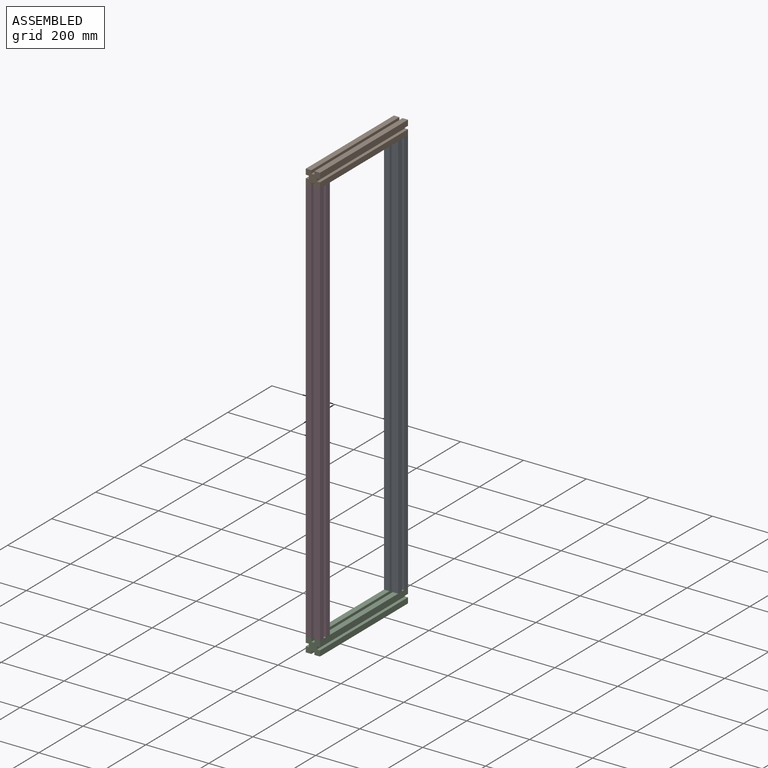
[diagram: assembled view]
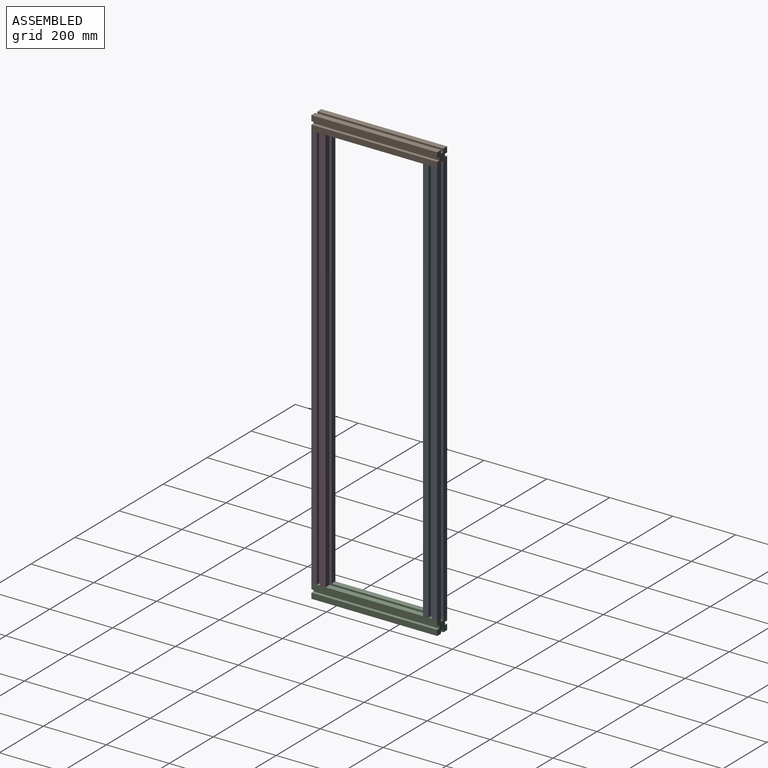
[diagram: assembled view, second angle]
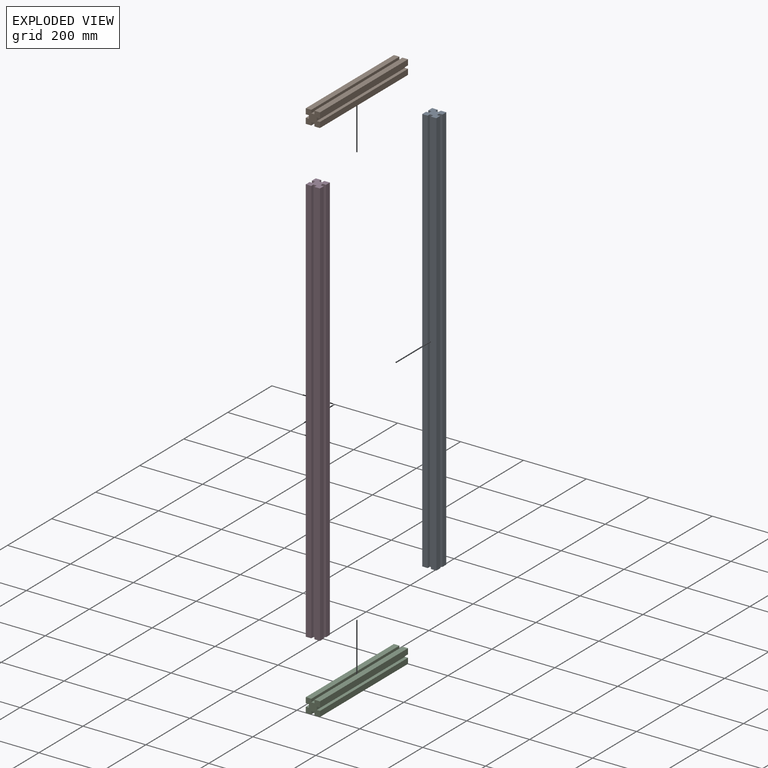
[diagram: exploded view]
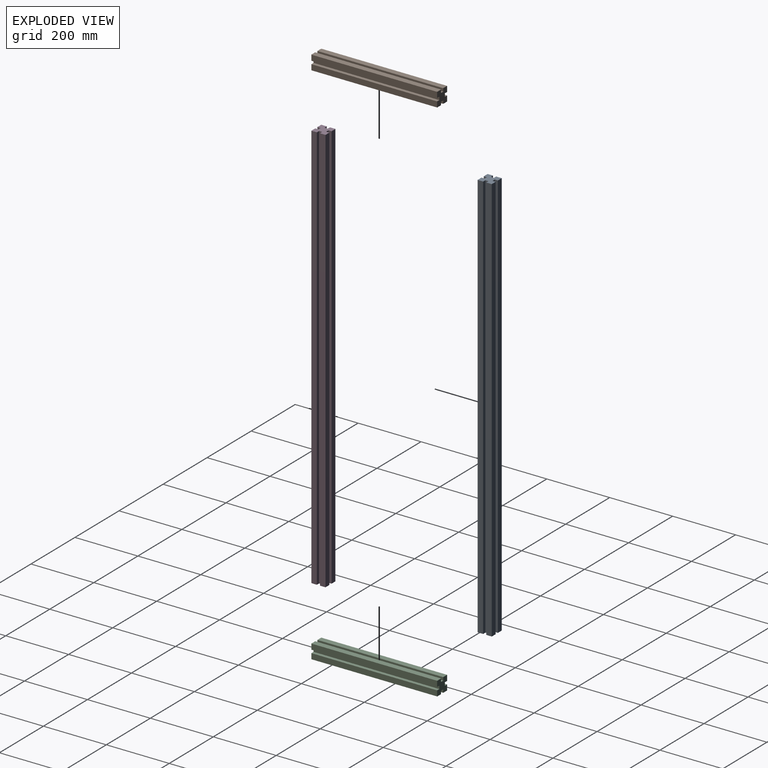
[diagram: exploded view, second angle]
ASSEMBLY  parts=4 mates=10
PART A: 22 faces, bbox 45x45x1300 mm
  f0: plane 1300x17.5mm, normal (-1,0,0), area 22750mm2, adj f4,f5,f9,f19
  f1: plane 1300x17.5mm, normal (0,-1,0), area 22750mm2, adj f4,f5,f8,f14
  f2: plane 1300x17.5mm, normal (1,0,0), area 22750mm2, adj f3,f4,f5,f16
  f3: plane 1300x17.5mm, normal (0,1,0), area 22750mm2, adj f2,f4,f5,f12
  f4: plane 45x45mm, normal (0,0,1), area 1625mm2, adj f0,f1,f2,f3,f6,f7,f8,f9
  f5: plane 45x45mm, normal (0,0,-1), area 1625mm2, adj f0,f1,f2,f3,f6,f7,f8,f9
  f6: plane 1300x17.5mm, normal (-1,0,0), area 22750mm2, adj f4,f5,f7,f20
  f7: plane 1300x17.5mm, normal (0,-1,0), area 22750mm2, adj f4,f5,f6,f13
  f8: plane 1300x17.5mm, normal (1,0,0), area 22750mm2, adj f1,f4,f5,f18
  f9: plane 1300x17.5mm, normal (0,1,0), area 22750mm2, adj f0,f4,f5,f10
  f10: plane 1300x10mm, normal (1,0,0), area 13000mm2, adj f4,f5,f9,f11
  f11: plane 1300x10mm, normal (0,1,0), area 13000mm2, adj f4,f5,f10,f12
  f12: plane 1300x10mm, normal (-1,0,0), area 13000mm2, adj f3,f4,f5,f11
  f13: plane 1300x10mm, normal (1,0,0), area 13000mm2, adj f4,f5,f7,f15
  f14: plane 1300x10mm, normal (-1,0,0), area 13000mm2, adj f1,f4,f5,f15
  f15: plane 1300x10mm, normal (0,-1,0), area 13000mm2, adj f4,f5,f13,f14
  f16: plane 1300x10mm, normal (0,-1,0), area 13000mm2, adj f2,f4,f5,f17
  f17: plane 1300x10mm, normal (1,0,0), area 13000mm2, adj f4,f5,f16,f18
  f18: plane 1300x10mm, normal (0,1,0), area 13000mm2, adj f4,f5,f8,f17
  f19: plane 1300x10mm, normal (0,-1,0), area 13000mm2, adj f0,f4,f5,f21
  f20: plane 1300x10mm, normal (0,1,0), area 13000mm2, adj f4,f5,f6,f21
  f21: plane 1300x10mm, normal (-1,0,0), area 13000mm2, adj f4,f5,f19,f20
PART B: 22 faces, bbox 45x45x400 mm
  f0: plane 400x17.5mm, normal (-1,0,0), area 7000mm2, adj f4,f5,f9,f19
  f1: plane 400x17.5mm, normal (0,-1,0), area 7000mm2, adj f4,f5,f8,f14
  f2: plane 400x17.5mm, normal (1,0,0), area 7000mm2, adj f3,f4,f5,f16
  f3: plane 400x17.5mm, normal (0,1,0), area 7000mm2, adj f2,f4,f5,f12
  f4: plane 45x45mm, normal (0,0,1), area 1625mm2, adj f0,f1,f2,f3,f6,f7,f8,f9
  f5: plane 45x45mm, normal (0,0,-1), area 1625mm2, adj f0,f1,f2,f3,f6,f7,f8,f9
  f6: plane 400x17.5mm, normal (-1,0,0), area 7000mm2, adj f4,f5,f7,f20
  f7: plane 400x17.5mm, normal (0,-1,0), area 7000mm2, adj f4,f5,f6,f13
  f8: plane 400x17.5mm, normal (1,0,0), area 7000mm2, adj f1,f4,f5,f18
  f9: plane 400x17.5mm, normal (0,1,0), area 7000mm2, adj f0,f4,f5,f10
  f10: plane 400x10mm, normal (1,0,0), area 4000mm2, adj f4,f5,f9,f11
  f11: plane 400x10mm, normal (0,1,0), area 4000mm2, adj f4,f5,f10,f12
  f12: plane 400x10mm, normal (-1,0,0), area 4000mm2, adj f3,f4,f5,f11
  f13: plane 400x10mm, normal (1,0,0), area 4000mm2, adj f4,f5,f7,f15
  f14: plane 400x10mm, normal (-1,0,0), area 4000mm2, adj f1,f4,f5,f15
  f15: plane 400x10mm, normal (0,-1,0), area 4000mm2, adj f4,f5,f13,f14
  f16: plane 400x10mm, normal (0,-1,0), area 4000mm2, adj f2,f4,f5,f17
  f17: plane 400x10mm, normal (1,0,0), area 4000mm2, adj f4,f5,f16,f18
  f18: plane 400x10mm, normal (0,1,0), area 4000mm2, adj f4,f5,f8,f17
  f19: plane 400x10mm, normal (0,-1,0), area 4000mm2, adj f0,f4,f5,f21
  f20: plane 400x10mm, normal (0,1,0), area 4000mm2, adj f4,f5,f6,f21
  f21: plane 400x10mm, normal (-1,0,0), area 4000mm2, adj f4,f5,f19,f20
PART C: same geometry as B
PART D: same geometry as A
PLACE A t=(-544.9,316.91,-148.55)mm
PLACE B rot(axis=(-1,0,0),90deg) t=(-544.9,-38.09,1196.45)mm
PLACE C rot(axis=(0,-0.71,0.71),180deg) t=(-499.9,361.91,-148.55)mm
PLACE D t=(-544.9,-38.09,-148.55)mm
MATE planar B.f9 <-> A.f4  axis (0,0,-1) through (-536.15,161.91,1151.45)mm
MATE planar B.f4 <-> A.f9  axis (0,1,0) through (-522.4,361.91,1173.95)mm
MATE planar C.f8 <-> A.f6  axis (-1,0,0) through (-544.9,361.91,-166.05)mm
MATE planar D.f7 <-> B.f5  axis (0,-1,0) through (-536.15,-38.09,1151.45)mm
MATE planar A.f9 <-> C.f5  axis (0,1,0) through (-536.15,361.91,-148.55)mm
MATE planar D.f1 <-> C.f4  axis (0,-1,0) through (-508.65,-38.09,501.45)mm
MATE planar D.f5 <-> C.f7  axis (0,0,-1) through (-522.4,-15.59,-148.55)mm
MATE planar D.f6 <-> B.f0  axis (-1,0,0) through (-544.9,-29.34,501.45)mm
MATE planar A.f5 <-> C.f7  axis (0,0,-1) through (-522.4,339.41,-148.55)mm
MATE planar B.f0 <-> A.f0  axis (-1,0,0) through (-544.9,161.91,1160.2)mm
